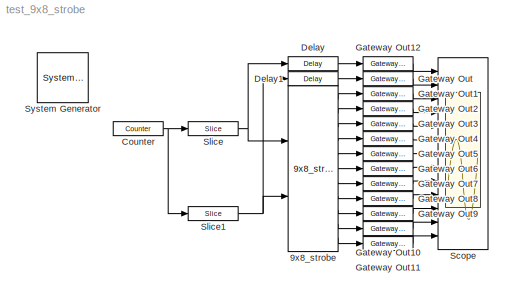
MODEL test_9x8_strobe
KIND model
BLOCK [Reference]  System Generator  REF=xbsIndex_r4/ System Generator
  AttributesFormatString = System\\nGenerator
  FunctionWithSeparateData = off
  Ports = []
  RTWMemSecDataConstants = Inherit from model
  RTWMemSecDataInternal = Inherit from model
  RTWMemSecDataParameters = Inherit from model
  RTWMemSecFuncExecute = Inherit from model
  RTWMemSecFuncInitTerm = Inherit from model
  SID = 1
  ShowPortLabels = FromPortIcon
  SourceBlock = xbsIndex_r4/ System Generator
  SourceType = Xilinx System Generator Block
  SystemSampleTime = -1
  Tag = genX
  UserData = DataTag0
  UserDataPersistent = on
  block_type = sysgen
  block_version = 11.3
  clock_wrapper = Clock Enables
  core_generation = According to Block Masks
  dbl_ovrd = According to Block Masks
  dcm_input_clock_period = 10
  deprecated_control = off
  directory = ./netlist
  eval_field = 0
  has_advanced_control = 0
  incr_netlist = off
  infoedit = System Generator
  package = ff1156
  part = xc6vsx315t
  run_coregen = off
  sg_icon_stat = 51,50,-1,-1,red,beige,0,07734,right,
  sg_mask_display = fprintf('','COMMENT: begin icon graphics');\npatch([0 1 1 0 ],[0 0 1 1 ],[0.93 0.92 0.86]);\npatch([0.235294 0.0784314 0.313725 0.0784314 0.235294 0.490196 0.568627 0.647059 0.921569 0.705882 0.490196 0.333333 0.568627 0.333333 0.490196 0.705882 0.921569 0.647059 0.568627 0.490196 0.235294 ],[0.1 0.26 0.5 0.74 0.9 0.9 0.82 0.9 0.9 0.68 0.9 0.74 0.5 0.26 0.1 0.32 0.1 0.1 0.18 0.1 0.1 ],[0.6 0.2 0.2...<+163ch>
  sggui_pos = -1,-1,-1,-1
  simulink_period = 1
  speed = -3
  synthesis_tool = XST
  sysclk_period = 10
  testbench = off
  trim_vbits = Everywhere in SubSystem
  xilinxfamily = Virtex6
BLOCK [Reference] 9x8_strobe  REF=isi_correlator_lib/9x8_strobe  (lib defined in mdl_4b72aa53f299)
  FunctionWithSeparateData = off
  Ports = [2, 11]
  RTWMemSecDataConstants = Inherit from model
  RTWMemSecDataInternal = Inherit from model
  RTWMemSecDataParameters = Inherit from model
  RTWMemSecFuncExecute = Inherit from model
  RTWMemSecFuncInitTerm = Inherit from model
  SID = 2
  ShowPortLabels = FromPortIcon
  SourceBlock = isi_correlator_lib/9x8_strobe
  SourceType = 9x8_strobe
  SystemSampleTime = -1
BLOCK [Reference] Counter  REF=xbsIndex_r4/Counter
  Ports = [0, 1]
  SID = 3
  SourceBlock = xbsIndex_r4/Counter
  SourceType = Xilinx Counter Block
  arith_type = Unsigned
  bin_pt = 0
  block_type = counter
  block_version = 11.3
  cnt_by_val = 1
  cnt_to = Inf
  cnt_type = Free Running
  dbl_ovrd = off
  en = off
  explicit_period = on
  has_advanced_control = 0
  implementation = Fabric
  infoedit = Hardware notes: Free running counters are the least expensive in hardware.  A count limited counter is implemented by combining a counter with a comparator.
  load_pin = off
  n_bits = 10
  operation = Up
  period = 1
  rst = off
  sg_icon_stat = 50,16,0,1,white,blue,0,335d209d,right,
  sg_mask_display = fprintf('','COMMENT: begin icon graphics');\npatch([0 1 1 0 ],[0 0 1 1 ],[0.77 0.82 0.91]);\npatch([0.42 0.36 0.44 0.36 0.42 0.5 0.52 0.54 0.64 0.56 0.5 0.46 0.54 0.46 0.5 0.56 0.64 0.54 0.52 0.5 0.42 ],[0.125 0.3125 0.5625 0.8125 1 1 0.9375 1 1 0.75 0.9375 0.8125 0.5625 0.3125 0.1875 0.375 0.125 0.125 0.1875 0.125 0.125 ],[0.98 0.96 0.92]);\nplot([0 1 1 0 0 ],[0 0 1 1 0 ]);\nfprintf('','COMMENT: ...<+148ch>
  sggui_pos = 20,20,543,936
  start_count = 0
  use_behavioral_HDL = off
  xl_area = [0,0,0,0,0,0,0]
  xl_use_area = off
BLOCK [Reference] Delay  REF=xbsIndex_r4/Delay
  Ports = [1, 1]
  SID = 20
  SourceBlock = xbsIndex_r4/Delay
  SourceType = Xilinx Delay Block
  block_type = delay
  block_version = 11.3
  dbl_ovrd = off
  en = off
  has_advanced_control = 0
  infoedit = Hardware notes: A delay line is a chain, each link of which is an SRL16 followed by a flip-flop.
  latency = 2
  reg_retiming = on
  sg_icon_stat = 50,16,1,1,white,blue,0,85ce9542,right,
  sg_mask_display = fprintf('','COMMENT: begin icon graphics');\npatch([0 1 1 0 ],[0 0 1 1 ],[0.77 0.82 0.91]);\npatch([0.42 0.36 0.44 0.36 0.42 0.5 0.52 0.54 0.64 0.56 0.5 0.46 0.54 0.46 0.5 0.56 0.64 0.54 0.52 0.5 0.42 ],[0.125 0.3125 0.5625 0.8125 1 1 0.9375 1 1 0.75 0.9375 0.8125 0.5625 0.3125 0.1875 0.375 0.125 0.125 0.1875 0.125 0.125 ],[0.98 0.96 0.92]);\nplot([0 1 1 0 0 ],[0 0 1 1 0 ]);\nfprintf('','COMMENT: ...<+149ch>
  sggui_pos = -1,-1,-1,-1
  xl_area = [0,0,0,0,0,0,0]
  xl_use_area = off
BLOCK [Reference] Delay1  REF=xbsIndex_r4/Delay
  Ports = [1, 1]
  SID = 21
  SourceBlock = xbsIndex_r4/Delay
  SourceType = Xilinx Delay Block
  block_type = delay
  block_version = 11.3
  dbl_ovrd = off
  en = off
  has_advanced_control = 0
  infoedit = Hardware notes: A delay line is a chain, each link of which is an SRL16 followed by a flip-flop.
  latency = 2
  reg_retiming = on
  sg_icon_stat = 50,16,1,1,white,blue,0,85ce9542,right,
  sg_mask_display = fprintf('','COMMENT: begin icon graphics');\npatch([0 1 1 0 ],[0 0 1 1 ],[0.77 0.82 0.91]);\npatch([0.42 0.36 0.44 0.36 0.42 0.5 0.52 0.54 0.64 0.56 0.5 0.46 0.54 0.46 0.5 0.56 0.64 0.54 0.52 0.5 0.42 ],[0.125 0.3125 0.5625 0.8125 1 1 0.9375 1 1 0.75 0.9375 0.8125 0.5625 0.3125 0.1875 0.375 0.125 0.125 0.1875 0.125 0.125 ],[0.98 0.96 0.92]);\nplot([0 1 1 0 0 ],[0 0 1 1 0 ]);\nfprintf('','COMMENT: ...<+149ch>
  sggui_pos = -1,-1,-1,-1
  xl_area = [0,0,0,0,0,0,0]
  xl_use_area = off
BLOCK [Reference] Gateway Out  REF=xbsIndex_r4/Gateway Out
  LOCs = {}
  Ports = [1, 1]
  SID = 4
  SourceBlock = xbsIndex_r4/Gateway Out
  SourceType = Xilinx Gateway Out Block
  block_type = gatewayout
  block_version = 11.3
  has_advanced_control = 0
  hdl_port = on
  infoedit = Gateway out block.  Converts Xilinx fixed point inputs into ouputs of type Simulink integer, double, or fixed point.<br><br>Hardware notes:  In hardware these blocks become top level output ports or are discarded, depending on how they are configured.  <repeated x13 — deduplicated; at blocks: Gateway Out, Gateway Out1, Gateway Out10, Gateway Out11, Gateway Out12, Gateway Out2, Gateway Out3, Gateway Out4, Gateway Out5, Gateway Out6, Gateway Out7, Gateway Out8, Gateway Out9>
  locs_specified = off
  sg_icon_stat = 50,16,1,1,white,yellow,0,cc31b7ac,right,
  sg_mask_display = fprintf('','COMMENT: begin icon graphics');\npatch([0 1 1 0 ],[0 0 1 1 ],[0.95 0.93 0.65]);\npatch([0.42 0.36 0.44 0.36 0.42 0.5 0.52 0.54 0.64 0.56 0.5 0.46 0.54 0.46 0.5 0.56 0.64 0.54 0.52 0.5 0.42 ],[0.125 0.3125 0.5625 0.8125 1 1 0.9375 1 1 0.75 0.9375 0.8125 0.5625 0.3125 0.1875 0.375 0.125 0.125 0.1875 0.125 0.125 ],[0.98 0.96 0.92]);\nplot([0 1 1 0 0 ],[0 0 1 1 0 ]);\nfprintf('','COMMENT: ...<+228ch>  <repeated x13 — deduplicated; at blocks: Gateway Out, Gateway Out1, Gateway Out10, Gateway Out11, Gateway Out12, Gateway Out2, Gateway Out3, Gateway Out4, Gateway Out5, Gateway Out6, Gateway Out7, Gateway Out8, Gateway Out9>
  sggui_pos = -1,-1,-1,-1
  timing_constraint = None
  xl_area = [0,0,0,0,0,0,0]
  xl_use_area = off
BLOCK [Reference] Gateway Out1  REF=xbsIndex_r4/Gateway Out
  LOCs = {}
  Ports = [1, 1]
  SID = 5
  SourceBlock = xbsIndex_r4/Gateway Out
  SourceType = Xilinx Gateway Out Block
  block_type = gatewayout
  block_version = 11.3
  has_advanced_control = 0
  hdl_port = on
  locs_specified = off
  sg_icon_stat = 50,16,1,1,white,yellow,0,cc31b7ac,right,
  sggui_pos = -1,-1,-1,-1
  timing_constraint = None
  xl_area = [0,0,0,0,0,0,0]
  xl_use_area = off
BLOCK [Reference] Gateway Out10  REF=xbsIndex_r4/Gateway Out
  LOCs = {}
  Ports = [1, 1]
  SID = 6
  SourceBlock = xbsIndex_r4/Gateway Out
  SourceType = Xilinx Gateway Out Block
  block_type = gatewayout
  block_version = 11.3
  has_advanced_control = 0
  hdl_port = on
  locs_specified = off
  sg_icon_stat = 50,16,1,1,white,yellow,0,cc31b7ac,right,
  sggui_pos = -1,-1,-1,-1
  timing_constraint = None
  xl_area = [0,0,0,0,0,0,0]
  xl_use_area = off
BLOCK [Reference] Gateway Out11  REF=xbsIndex_r4/Gateway Out
  LOCs = {}
  Ports = [1, 1]
  SID = 7
  SourceBlock = xbsIndex_r4/Gateway Out
  SourceType = Xilinx Gateway Out Block
  block_type = gatewayout
  block_version = 11.3
  has_advanced_control = 0
  hdl_port = on
  locs_specified = off
  sg_icon_stat = 50,16,1,1,white,yellow,0,cc31b7ac,right,
  sggui_pos = -1,-1,-1,-1
  timing_constraint = None
  xl_area = [0,0,0,0,0,0,0]
  xl_use_area = off
BLOCK [Reference] Gateway Out12  REF=xbsIndex_r4/Gateway Out
  LOCs = {}
  Ports = [1, 1]
  SID = 19
  SourceBlock = xbsIndex_r4/Gateway Out
  SourceType = Xilinx Gateway Out Block
  block_type = gatewayout
  block_version = 11.3
  has_advanced_control = 0
  hdl_port = on
  locs_specified = off
  sg_icon_stat = 50,16,1,1,white,yellow,0,cc31b7ac,right,
  sggui_pos = -1,-1,-1,-1
  timing_constraint = None
  xl_area = [0,0,0,0,0,0,0]
  xl_use_area = off
BLOCK [Reference] Gateway Out2  REF=xbsIndex_r4/Gateway Out
  LOCs = {}
  Ports = [1, 1]
  SID = 8
  SourceBlock = xbsIndex_r4/Gateway Out
  SourceType = Xilinx Gateway Out Block
  block_type = gatewayout
  block_version = 11.3
  has_advanced_control = 0
  hdl_port = on
  locs_specified = off
  sg_icon_stat = 50,16,1,1,white,yellow,0,cc31b7ac,right,
  sggui_pos = -1,-1,-1,-1
  timing_constraint = None
  xl_area = [0,0,0,0,0,0,0]
  xl_use_area = off
BLOCK [Reference] Gateway Out3  REF=xbsIndex_r4/Gateway Out
  LOCs = {}
  Ports = [1, 1]
  SID = 9
  SourceBlock = xbsIndex_r4/Gateway Out
  SourceType = Xilinx Gateway Out Block
  block_type = gatewayout
  block_version = 11.3
  has_advanced_control = 0
  hdl_port = on
  locs_specified = off
  sg_icon_stat = 50,16,1,1,white,yellow,0,cc31b7ac,right,
  sggui_pos = -1,-1,-1,-1
  timing_constraint = None
  xl_area = [0,0,0,0,0,0,0]
  xl_use_area = off
BLOCK [Reference] Gateway Out4  REF=xbsIndex_r4/Gateway Out
  LOCs = {}
  Ports = [1, 1]
  SID = 10
  SourceBlock = xbsIndex_r4/Gateway Out
  SourceType = Xilinx Gateway Out Block
  block_type = gatewayout
  block_version = 11.3
  has_advanced_control = 0
  hdl_port = on
  locs_specified = off
  sg_icon_stat = 50,16,1,1,white,yellow,0,cc31b7ac,right,
  sggui_pos = -1,-1,-1,-1
  timing_constraint = None
  xl_area = [0,0,0,0,0,0,0]
  xl_use_area = off
BLOCK [Reference] Gateway Out5  REF=xbsIndex_r4/Gateway Out
  LOCs = {}
  Ports = [1, 1]
  SID = 11
  SourceBlock = xbsIndex_r4/Gateway Out
  SourceType = Xilinx Gateway Out Block
  block_type = gatewayout
  block_version = 11.3
  has_advanced_control = 0
  hdl_port = on
  locs_specified = off
  sg_icon_stat = 50,16,1,1,white,yellow,0,cc31b7ac,right,
  sggui_pos = -1,-1,-1,-1
  timing_constraint = None
  xl_area = [0,0,0,0,0,0,0]
  xl_use_area = off
BLOCK [Reference] Gateway Out6  REF=xbsIndex_r4/Gateway Out
  LOCs = {}
  Ports = [1, 1]
  SID = 12
  SourceBlock = xbsIndex_r4/Gateway Out
  SourceType = Xilinx Gateway Out Block
  block_type = gatewayout
  block_version = 11.3
  has_advanced_control = 0
  hdl_port = on
  locs_specified = off
  sg_icon_stat = 50,16,1,1,white,yellow,0,cc31b7ac,right,
  sggui_pos = -1,-1,-1,-1
  timing_constraint = None
  xl_area = [0,0,0,0,0,0,0]
  xl_use_area = off
BLOCK [Reference] Gateway Out7  REF=xbsIndex_r4/Gateway Out
  LOCs = {}
  Ports = [1, 1]
  SID = 13
  SourceBlock = xbsIndex_r4/Gateway Out
  SourceType = Xilinx Gateway Out Block
  block_type = gatewayout
  block_version = 11.3
  has_advanced_control = 0
  hdl_port = on
  locs_specified = off
  sg_icon_stat = 50,16,1,1,white,yellow,0,cc31b7ac,right,
  sggui_pos = -1,-1,-1,-1
  timing_constraint = None
  xl_area = [0,0,0,0,0,0,0]
  xl_use_area = off
BLOCK [Reference] Gateway Out8  REF=xbsIndex_r4/Gateway Out
  LOCs = {}
  Ports = [1, 1]
  SID = 14
  SourceBlock = xbsIndex_r4/Gateway Out
  SourceType = Xilinx Gateway Out Block
  block_type = gatewayout
  block_version = 11.3
  has_advanced_control = 0
  hdl_port = on
  locs_specified = off
  sg_icon_stat = 50,16,1,1,white,yellow,0,cc31b7ac,right,
  sggui_pos = -1,-1,-1,-1
  timing_constraint = None
  xl_area = [0,0,0,0,0,0,0]
  xl_use_area = off
BLOCK [Reference] Gateway Out9  REF=xbsIndex_r4/Gateway Out
  LOCs = {}
  Ports = [1, 1]
  SID = 15
  SourceBlock = xbsIndex_r4/Gateway Out
  SourceType = Xilinx Gateway Out Block
  block_type = gatewayout
  block_version = 11.3
  has_advanced_control = 0
  hdl_port = on
  locs_specified = off
  sg_icon_stat = 50,16,1,1,white,yellow,0,cc31b7ac,right,
  sggui_pos = -1,-1,-1,-1
  timing_constraint = None
  xl_area = [0,0,0,0,0,0,0]
  xl_use_area = off
BLOCK [Scope] Scope
  DataFormat = StructureWithTime
  Floating = off
  NumInputPorts = 13
  Ports = [13]
  SID = 16
  SampleTime = 0
  YMax = 5~5~5~5~5~5~5~5~5~5~5~5~5
  YMin = -5~-5~-5~-5~-5~-5~-5~-5~-5~-5~-5~-5~-5
  ZoomMode = xonly
BLOCK [Reference] Slice  REF=xbsIndex_r4/Slice
  Ports = [1, 1]
  SID = 17
  SourceBlock = xbsIndex_r4/Slice
  SourceType = Xilinx Bit Slice Extractor Block
  base0 = LSB of Input
  base1 = MSB of Input
  bit0 = 6
  bit1 = 0
  block_type = slice
  block_version = 11.3
  boolean_output = on
  dbl_ovrd = off
  has_advanced_control = 0
  infoedit = Extracts a given range of bits from each input sample and presents it at the output.  The output type is ordinarily unsigned with binary point at zero, but can be Boolean when the slice is one bit wide.<br><br>Hardware notes: In hardware this block costs nothing.
  mode = Lower Bit Location + Width
  nbits = 1
  sg_icon_stat = 50,16,1,1,white,blue,0,1fd851a7,right,
  sg_mask_display = fprintf('','COMMENT: begin icon graphics');\npatch([0 1 1 0 ],[0 0 1 1 ],[0.77 0.82 0.91]);\npatch([0.42 0.36 0.44 0.36 0.42 0.5 0.52 0.54 0.64 0.56 0.5 0.46 0.54 0.46 0.5 0.56 0.64 0.54 0.52 0.5 0.42 ],[0.125 0.3125 0.5625 0.8125 1 1 0.9375 1 1 0.75 0.9375 0.8125 0.5625 0.3125 0.1875 0.375 0.125 0.125 0.1875 0.125 0.125 ],[0.98 0.96 0.92]);\nplot([0 1 1 0 0 ],[0 0 1 1 0 ]);\nfprintf('','COMMENT: ...<+150ch>
  sggui_pos = 0,0,631,621
BLOCK [Reference] Slice1  REF=xbsIndex_r4/Slice
  Ports = [1, 1]
  SID = 18
  SourceBlock = xbsIndex_r4/Slice
  SourceType = Xilinx Bit Slice Extractor Block
  base0 = LSB of Input
  base1 = MSB of Input
  bit0 = 9
  bit1 = 0
  block_type = slice
  block_version = 11.3
  boolean_output = on
  dbl_ovrd = off
  has_advanced_control = 0
  infoedit = Extracts a given range of bits from each input sample and presents it at the output.  The output type is ordinarily unsigned with binary point at zero, but can be Boolean when the slice is one bit wide.<br><br>Hardware notes: In hardware this block costs nothing.
  mode = Lower Bit Location + Width
  nbits = 1
  sg_icon_stat = 50,16,1,1,white,blue,0,1fd851a7,right,
  sg_mask_display = fprintf('','COMMENT: begin icon graphics');\npatch([0 1 1 0 ],[0 0 1 1 ],[0.77 0.82 0.91]);\npatch([0.42 0.36 0.44 0.36 0.42 0.5 0.52 0.54 0.64 0.56 0.5 0.46 0.54 0.46 0.5 0.56 0.64 0.54 0.52 0.5 0.42 ],[0.125 0.3125 0.5625 0.8125 1 1 0.9375 1 1 0.75 0.9375 0.8125 0.5625 0.3125 0.1875 0.375 0.125 0.125 0.1875 0.125 0.125 ],[0.98 0.96 0.92]);\nplot([0 1 1 0 0 ],[0 0 1 1 0 ]);\nfprintf('','COMMENT: ...<+150ch>
  sggui_pos = 20,20,631,621
LINE 9x8_strobe:1 -> Gateway Out1:1
LINE 9x8_strobe:10 -> Gateway Out10:1
LINE 9x8_strobe:11 -> Gateway Out11:1
LINE 9x8_strobe:2 -> Gateway Out2:1
LINE 9x8_strobe:3 -> Gateway Out3:1
LINE 9x8_strobe:4 -> Gateway Out4:1
LINE 9x8_strobe:5 -> Gateway Out5:1
LINE 9x8_strobe:6 -> Gateway Out6:1
LINE 9x8_strobe:7 -> Gateway Out7:1
LINE 9x8_strobe:8 -> Gateway Out8:1
LINE 9x8_strobe:9 -> Gateway Out9:1
NET Counter:1 -> Slice1:1, Slice:1
LINE Delay1:1 -> Gateway Out:1
LINE Delay:1 -> Gateway Out12:1
LINE Gateway Out10:1 -> Scope:12
LINE Gateway Out11:1 -> Scope:13
LINE Gateway Out12:1 -> Scope:1
LINE Gateway Out1:1 -> Scope:3
LINE Gateway Out2:1 -> Scope:4
LINE Gateway Out3:1 -> Scope:5
LINE Gateway Out4:1 -> Scope:6
LINE Gateway Out5:1 -> Scope:7
LINE Gateway Out6:1 -> Scope:8
LINE Gateway Out7:1 -> Scope:9
LINE Gateway Out8:1 -> Scope:10
LINE Gateway Out9:1 -> Scope:11
LINE Gateway Out:1 -> Scope:2
NET Slice1:1 -> 9x8_strobe:2, Delay1:1
NET Slice:1 -> 9x8_strobe:1, Delay:1
note: NET lines group one-source signal fan-out (src -> all destinations, sorted); 1:1 wires keep LINE
